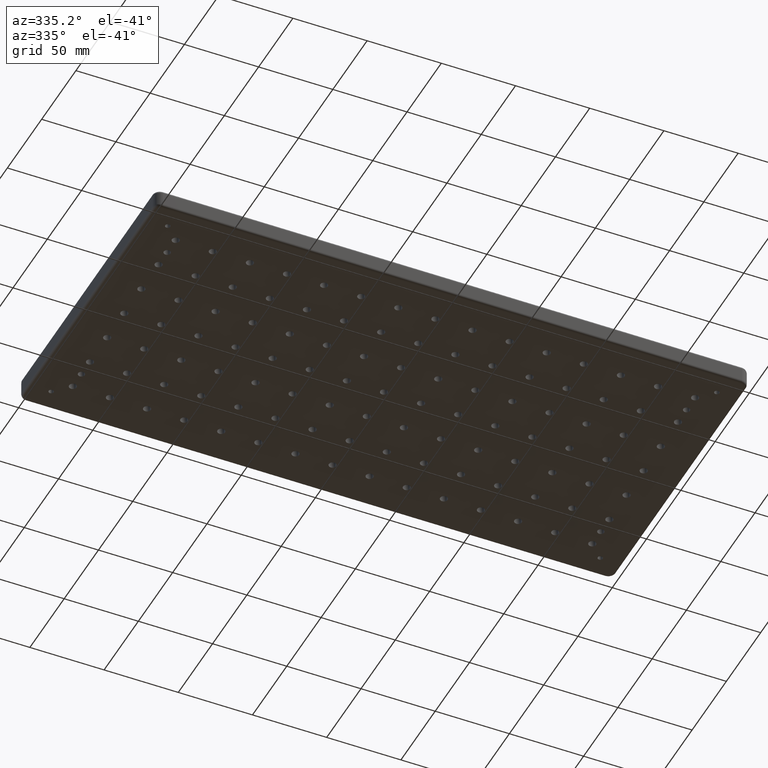
[diagram: clean part render]
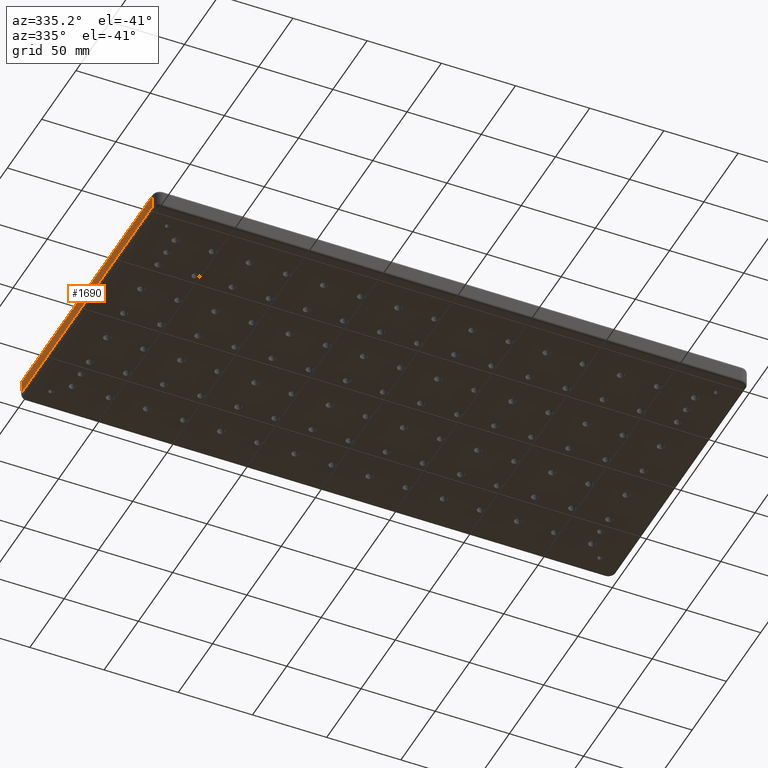
[diagram: same view with one face highlighted and labeled with its STEP entity id]
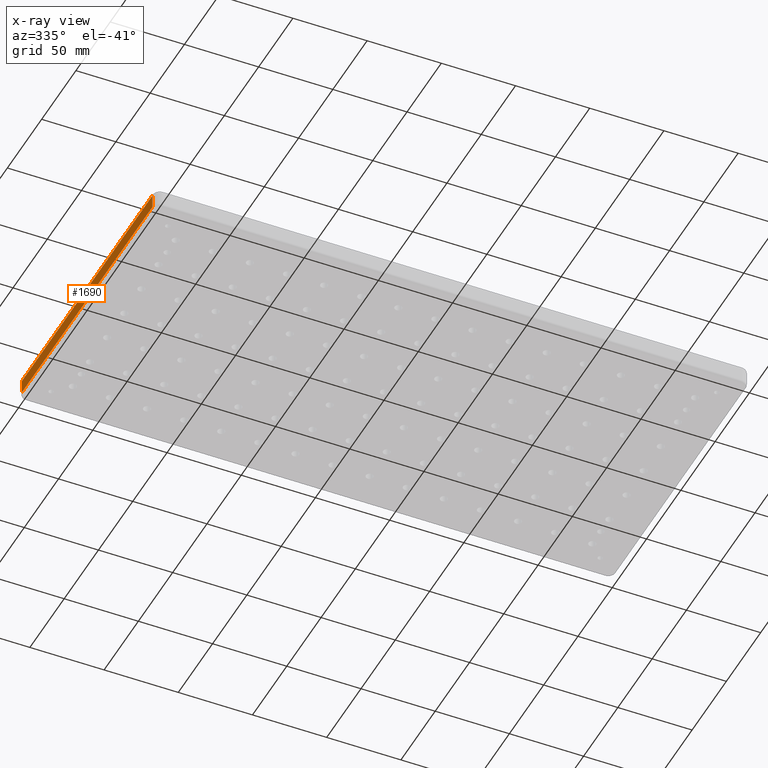
[diagram: x-ray of the same camera — body ghosted, the highlighted face saturated]
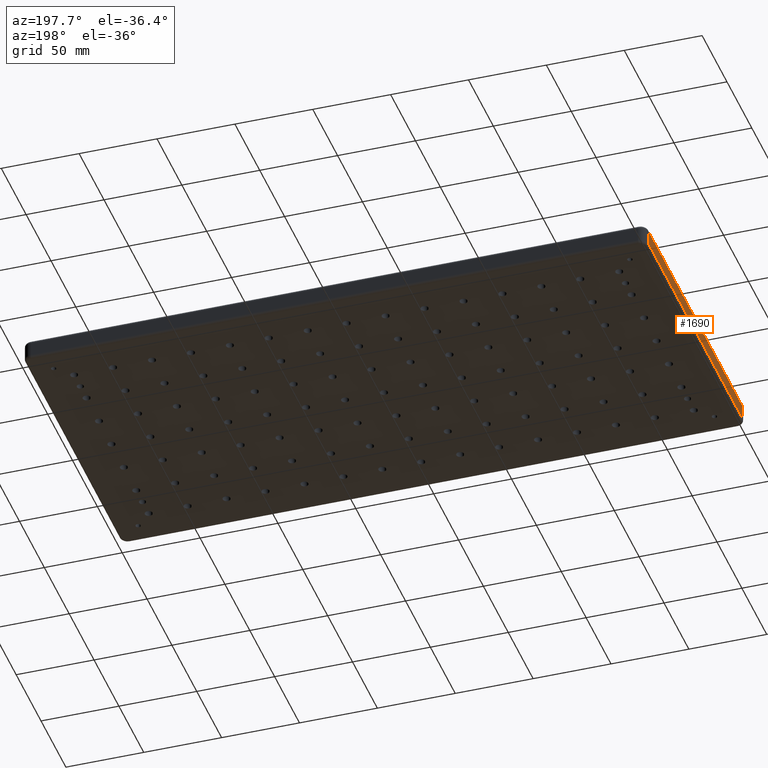
[diagram: same view with one face highlighted and labeled with its STEP entity id]
A machine part, auxiliary view. The second image highlights one B-rep face of the part: STEP entity #1690.
The next image is the same camera in x-ray: the body ghosted, the highlighted face saturated — about 0% of this face is hidden behind the body in this view.
A second angle (auxiliary view) of the same face is appended — the face is thin or edge-on in the first view.
In plain terms, the highlighted planar face has unit normal (-1, 0, 0).
Its self-contained STEP definition (entity closure, byte-faithful):
#129 = CARTESIAN_POINT ( 'NONE',  ( -199.9999999999999400, 95.00000000000012800, -2.000000000000001800 ) ) ;
#357 = EDGE_CURVE ( 'NONE', #7680, #4104, #9058, .T. ) ;
#530 = CARTESIAN_POINT ( 'NONE',  ( -199.9999999999999400, 95.00000000000012800, -13.00000000000000000 ) ) ;
#640 = DIRECTION ( 'NONE',  ( 0.0000000000000000000, 0.0000000000000000000, 1.000000000000000000 ) ) ;
#927 = LINE ( 'NONE', #8725, #2952 ) ;
#986 = DIRECTION ( 'NONE',  ( 0.0000000000000000000, -1.000000000000000000, 0.0000000000000000000 ) ) ;
#1407 = DIRECTION ( 'NONE',  ( -1.000000000000000000, 0.0000000000000000000, 0.0000000000000000000 ) ) ;
#1506 = LINE ( 'NONE', #530, #5820 ) ;
#1690 = ADVANCED_FACE ( 'NONE', ( #6513 ), #7246, .T. ) ;
#1714 = ORIENTED_EDGE ( 'NONE', *, *, #1795, .F. ) ;
#1736 = VERTEX_POINT ( 'NONE', #3629 ) ;
#1795 = EDGE_CURVE ( 'NONE', #7680, #6314, #1506, .T. ) ;
#2029 = EDGE_CURVE ( 'NONE', #4104, #1736, #7519, .T. ) ;
#2175 = CARTESIAN_POINT ( 'NONE',  ( -199.9999999999999400, -95.00000000000012800, -13.00000000000000000 ) ) ;
#2218 = DIRECTION ( 'NONE',  ( -0.0000000000000000000, 1.000000000000000000, -0.0000000000000000000 ) ) ;
#2952 = VECTOR ( 'NONE', #2218, 1000.000000000000000 ) ;
#3394 = DIRECTION ( 'NONE',  ( 0.0000000000000000000, 0.0000000000000000000, 1.000000000000000000 ) ) ;
#3629 = CARTESIAN_POINT ( 'NONE',  ( -199.9999999999999400, -95.00000000000012800, -2.000000000000003600 ) ) ;
#3680 = EDGE_LOOP ( 'NONE', ( #1714, #9402, #3951, #9084 ) ) ;
#3951 = ORIENTED_EDGE ( 'NONE', *, *, #2029, .T. ) ;
#4104 = VERTEX_POINT ( 'NONE', #8314 ) ;
#4403 = AXIS2_PLACEMENT_3D ( 'NONE', #2175, #1407, #640 ) ;
#5020 = VECTOR ( 'NONE', #8144, 1000.000000000000000 ) ;
#5820 = VECTOR ( 'NONE', #3394, 1000.000000000000000 ) ;
#6314 = VERTEX_POINT ( 'NONE', #129 ) ;
#6513 = FACE_OUTER_BOUND ( 'NONE', #3680, .T. ) ;
#7103 = VECTOR ( 'NONE', #986, 1000.000000000000000 ) ;
#7246 = PLANE ( 'NONE',  #4403 ) ;
#7411 = CARTESIAN_POINT ( 'NONE',  ( -199.9999999999999400, -95.00000000000012800, -13.00000000000000000 ) ) ;
#7519 = LINE ( 'NONE', #7411, #5020 ) ;
#7680 = VERTEX_POINT ( 'NONE', #8465 ) ;
#8117 = CARTESIAN_POINT ( 'NONE',  ( -199.9999999999999400, -95.00000000000012800, -11.00000000000000000 ) ) ;
#8144 = DIRECTION ( 'NONE',  ( 0.0000000000000000000, 0.0000000000000000000, 1.000000000000000000 ) ) ;
#8314 = CARTESIAN_POINT ( 'NONE',  ( -199.9999999999999400, -95.00000000000012800, -11.00000000000000000 ) ) ;
#8465 = CARTESIAN_POINT ( 'NONE',  ( -199.9999999999999400, 95.00000000000012800, -11.00000000000000000 ) ) ;
#8725 = CARTESIAN_POINT ( 'NONE',  ( -199.9999999999999400, 95.00000000000012800, -2.000000000000000000 ) ) ;
#9058 = LINE ( 'NONE', #8117, #7103 ) ;
#9084 = ORIENTED_EDGE ( 'NONE', *, *, #9289, .T. ) ;
#9289 = EDGE_CURVE ( 'NONE', #1736, #6314, #927, .T. ) ;
#9402 = ORIENTED_EDGE ( 'NONE', *, *, #357, .T. ) ;